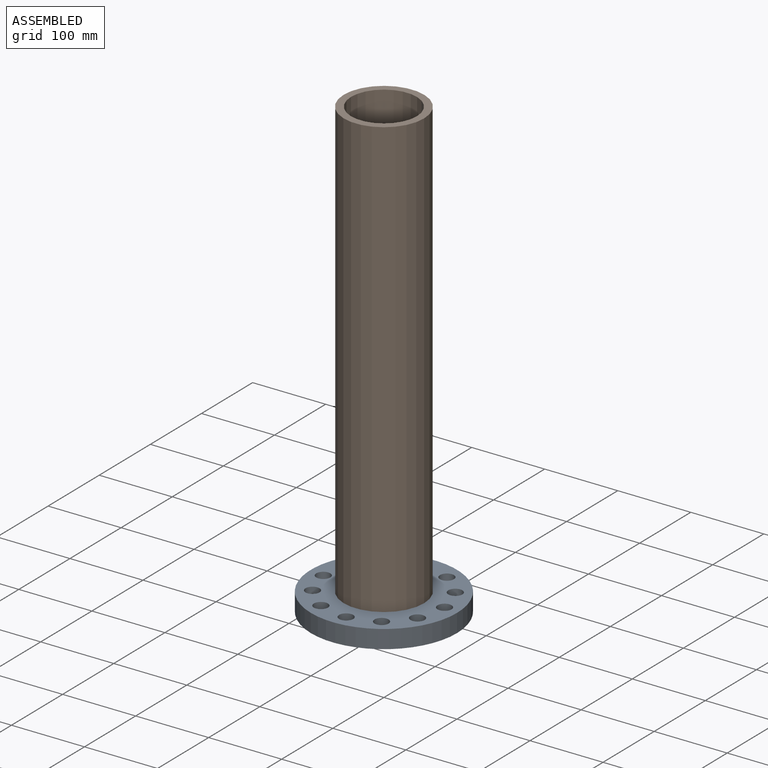
[diagram: assembled view]
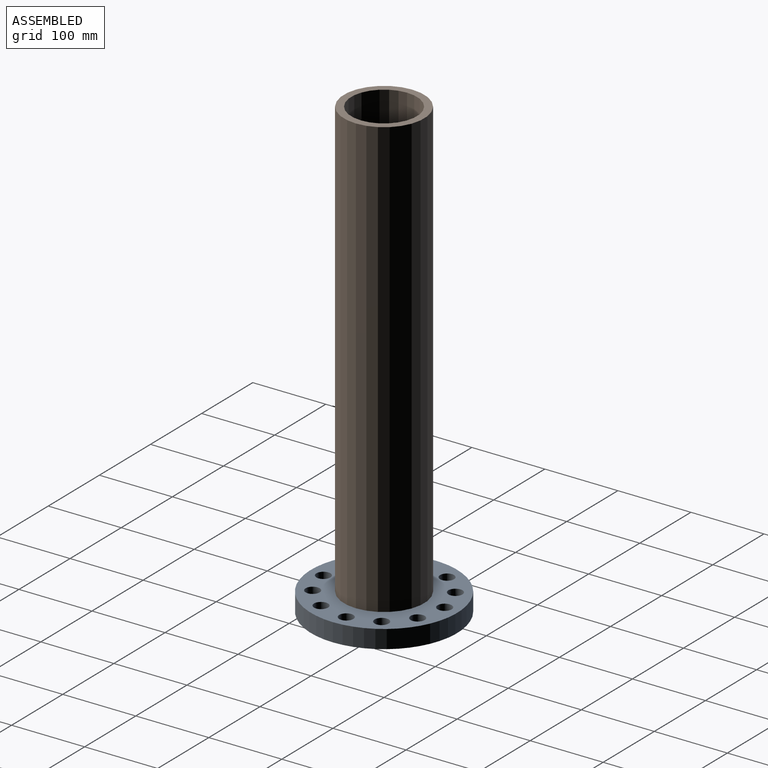
[diagram: assembled view, second angle]
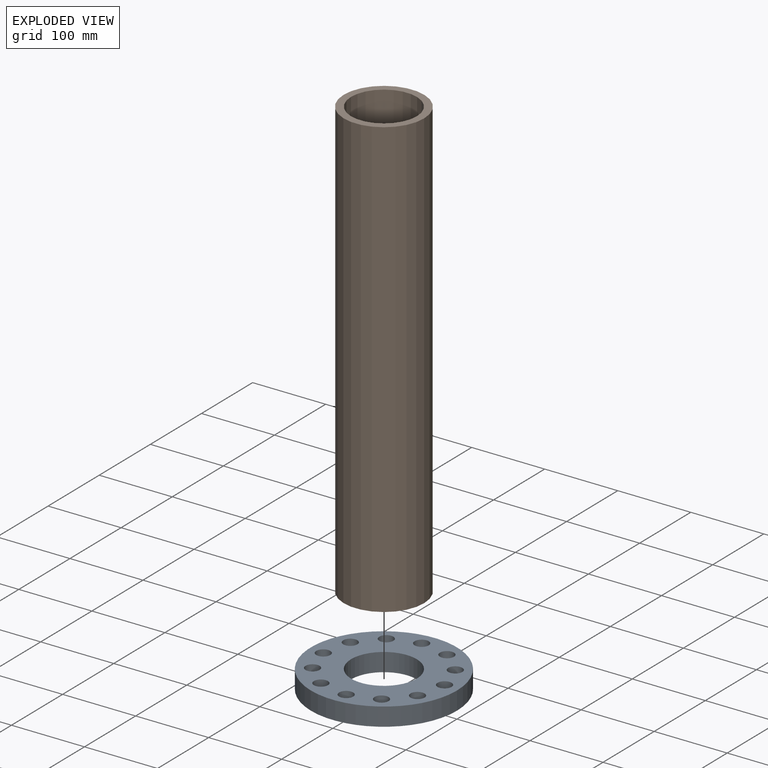
[diagram: exploded view]
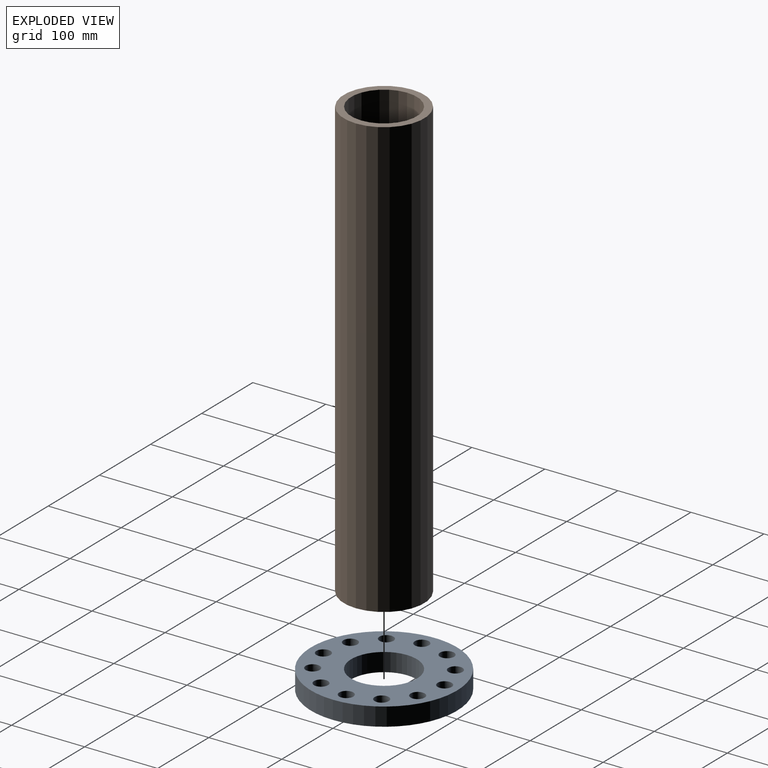
[diagram: exploded view, second angle]
ASSEMBLY  parts=2 mates=2
PART A: 40 faces, bbox 200x200x25 mm
  f0: cylinder r=100mm len=200mm, axis (0,0,-1), area 15708mm2, adj f1,f2
  f1: plane 200x200mm, normal (0,0,1), area 21561.7mm2, adj f0,f5,f8,f11,f14,f17,f20,f23
  f2: plane 200x200mm, normal (0,0,-1), area 23336.5mm2, adj f0,f3,f6,f9,f12,f15,f18,f21
  f3: cylinder r=6.75mm len=13.5mm, axis (0,0,1), area 551.3mm2, adj f2,f4
  f4: plane 19.25x19.25mm, normal (0,0,1), area 147.9mm2, adj f3,f5
  f5: cylinder r=9.62mm len=19.25mm, axis (0,0,1), area 725.7mm2, adj f1,f4
  f6: cylinder r=6.75mm len=13.5mm, axis (0,0,1), area 551.3mm2, adj f2,f7
  f7: plane 19.25x19.25mm, normal (0,0,1), area 147.9mm2, adj f6,f8
  f8: cylinder r=9.62mm len=19.25mm, axis (0,0,1), area 725.7mm2, adj f1,f7
  f9: cylinder r=6.75mm len=13.5mm, axis (0,0,1), area 551.3mm2, adj f2,f10
  f10: plane 19.25x19.25mm, normal (0,0,1), area 147.9mm2, adj f9,f11
  f11: cylinder r=9.62mm len=19.25mm, axis (0,0,1), area 725.7mm2, adj f1,f10
  f12: cylinder r=6.75mm len=13.5mm, axis (0,0,1), area 551.3mm2, adj f2,f13
  f13: plane 19.25x19.25mm, normal (0,0,1), area 147.9mm2, adj f12,f14
  f14: cylinder r=9.62mm len=19.25mm, axis (0,0,1), area 725.7mm2, adj f1,f13
  f15: cylinder r=6.75mm len=13.5mm, axis (0,0,1), area 551.3mm2, adj f2,f16
  f16: plane 19.25x19.25mm, normal (0,0,1), area 147.9mm2, adj f15,f17
  f17: cylinder r=9.62mm len=19.25mm, axis (0,0,1), area 725.7mm2, adj f1,f16
  f18: cylinder r=6.75mm len=13.5mm, axis (0,0,1), area 551.3mm2, adj f2,f19
  f19: plane 19.25x19.25mm, normal (0,0,1), area 147.9mm2, adj f18,f20
  f20: cylinder r=9.62mm len=19.25mm, axis (0,0,1), area 725.7mm2, adj f1,f19
  f21: cylinder r=6.75mm len=13.5mm, axis (0,0,1), area 551.3mm2, adj f2,f22
  f22: plane 19.25x19.25mm, normal (0,0,1), area 147.9mm2, adj f21,f23
  f23: cylinder r=9.62mm len=19.25mm, axis (0,0,1), area 725.7mm2, adj f1,f22
  f24: cylinder r=6.75mm len=13.5mm, axis (0,0,1), area 551.3mm2, adj f2,f25
  f25: plane 19.25x19.25mm, normal (0,0,1), area 147.9mm2, adj f24,f26
  f26: cylinder r=9.62mm len=19.25mm, axis (0,0,1), area 725.7mm2, adj f1,f25
  f27: cylinder r=6.75mm len=13.5mm, axis (0,0,1), area 551.3mm2, adj f2,f28
  f28: plane 19.25x19.25mm, normal (0,0,1), area 147.9mm2, adj f27,f29
  f29: cylinder r=9.62mm len=19.25mm, axis (0,0,1), area 725.7mm2, adj f1,f28
  f30: cylinder r=6.75mm len=13.5mm, axis (0,0,1), area 551.3mm2, adj f2,f31
  f31: plane 19.25x19.25mm, normal (0,0,1), area 147.9mm2, adj f30,f32
  f32: cylinder r=9.62mm len=19.25mm, axis (0,0,1), area 725.7mm2, adj f1,f31
  f33: cylinder r=6.75mm len=13.5mm, axis (0,0,1), area 551.3mm2, adj f2,f34
  f34: plane 19.25x19.25mm, normal (0,0,1), area 147.9mm2, adj f33,f35
  f35: cylinder r=9.62mm len=19.25mm, axis (0,0,1), area 725.7mm2, adj f1,f34
  f36: cylinder r=6.75mm len=13.5mm, axis (0,0,1), area 551.3mm2, adj f2,f37
  f37: plane 19.25x19.25mm, normal (0,0,1), area 147.9mm2, adj f36,f38
  f38: cylinder r=9.62mm len=19.25mm, axis (0,0,1), area 725.7mm2, adj f1,f37
  f39: cylinder r=45mm len=90mm, axis (0,0,1), area 7068.6mm2, adj f1,f2
PART B: 4 faces, bbox 110x110x600 mm
  f0: cylinder r=45mm len=600mm, axis (0,0,-1), area 169646mm2, adj f2,f3
  f1: cylinder r=55mm len=600mm, axis (0,0,-1), area 207345.1mm2, adj f2,f3
  f2: plane 110x110mm, normal (0,0,1), area 3141.6mm2, adj f0,f1
  f3: plane 110x110mm, normal (0,0,-1), area 3141.6mm2, adj f0,f1
PLACE A rot(axis=(0,0,1),0deg) t=(0,0,0)mm
PLACE B rot(axis=(0,0,1),180deg) t=(0,0,25)mm
MATE fastened B.f1 <-> A.f0  axis (0,0,-1) through (0,0,25)mm
MATE cylindrical B.f0 <-> A.f39  axis (0,0,-1) through (0,0,25)mm
